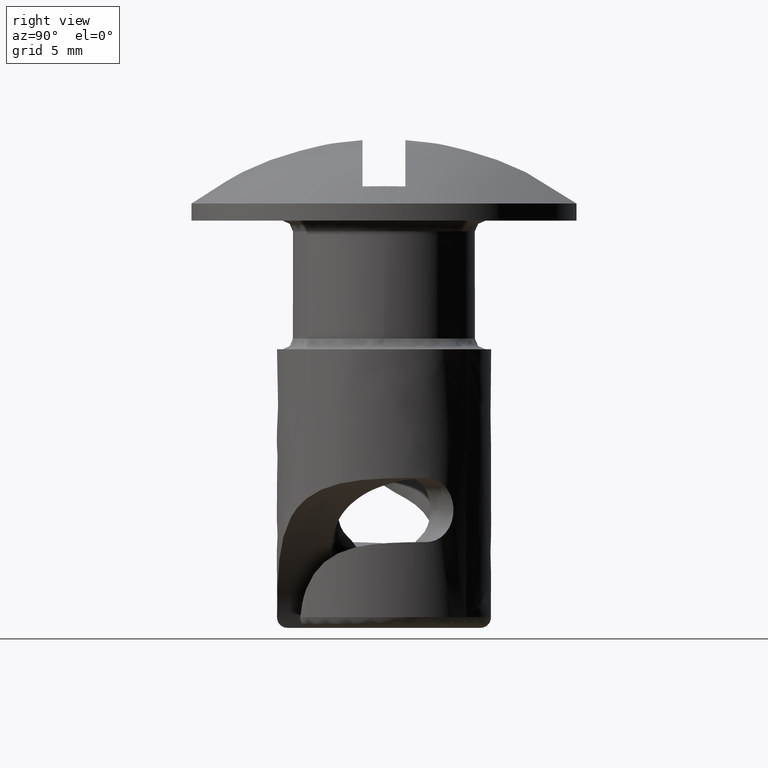
[diagram: clean part render]
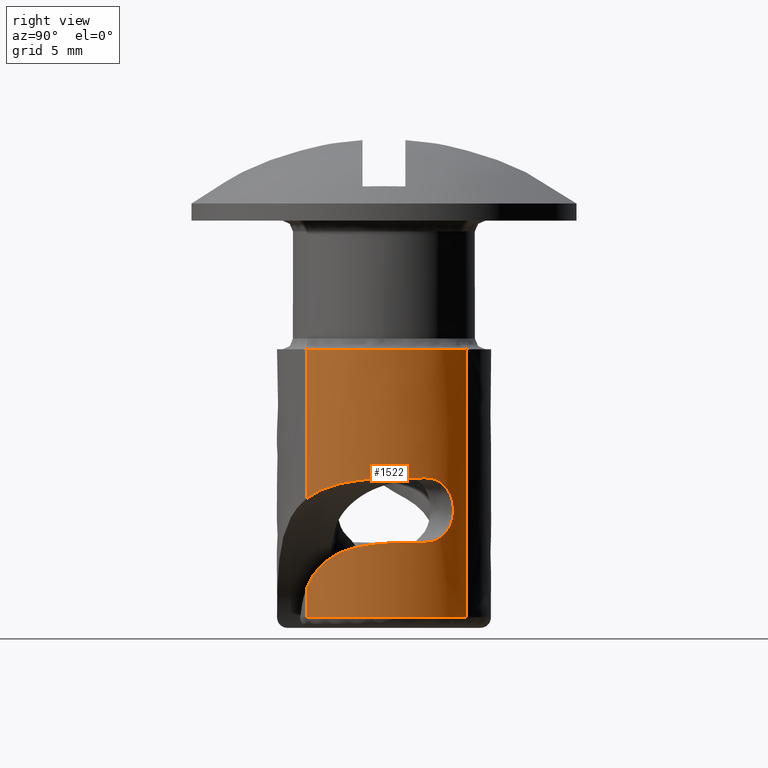
[diagram: same view with one face highlighted and labeled with its STEP entity id]
A machine part, right view. The second image highlights one B-rep face of the part: STEP entity #1522.
In plain terms, the highlighted face is a freeform B-spline surface patch.
Its self-contained STEP definition (entity closure, byte-faithful):
#986=CARTESIAN_POINT('',(3.441774244593505,-3.626873291777644,-17.183041864948351));
#987=VERTEX_POINT('',#986);
#1001=CARTESIAN_POINT('',(3.441768623521589,-3.626875892846059,-18.500000000000000));
#1002=VERTEX_POINT('',#1001);
#1016=CARTESIAN_POINT('',(3.441768623521589,-3.626875892846059,-18.500000000000000));
#1017=CARTESIAN_POINT('',(3.441774244593505,-3.626873291777644,-17.183041864948351));
#1018=QUASI_UNIFORM_CURVE('',1,(#1016,#1017),.UNSPECIFIED.,.F.,.U.);
#1019=EDGE_CURVE('',#1002,#987,#1018,.T.);
#1046=CARTESIAN_POINT('',(3.205213124924041,3.837526393891474,-18.500000000000000));
#1047=VERTEX_POINT('',#1046);
#1245=CARTESIAN_POINT('',(3.441772489773512,-3.626879071670037,-12.971468445251970));
#1246=VERTEX_POINT('',#1245);
#1280=CARTESIAN_POINT('',(3.441772743131209,-3.626871983491977,-6.0));
#1281=VERTEX_POINT('',#1280);
#1282=CARTESIAN_POINT('',(3.441772489773512,-3.626879071670037,-12.971468445251970));
#1283=CARTESIAN_POINT('',(3.441772743131209,-3.626871983491977,-6.0));
#1284=QUASI_UNIFORM_CURVE('',1,(#1282,#1283),.UNSPECIFIED.,.F.,.U.);
#1285=EDGE_CURVE('',#1246,#1281,#1284,.T.);
#1304=CARTESIAN_POINT('',(3.205211463064755,3.837527781923784,-6.0));
#1305=VERTEX_POINT('',#1304);
#1321=CARTESIAN_POINT('',(3.205213124924041,3.837526393891474,-18.500000000000000));
#1322=CARTESIAN_POINT('',(3.205211463064755,3.837527781923784,-6.0));
#1323=QUASI_UNIFORM_CURVE('',1,(#1321,#1322),.UNSPECIFIED.,.F.,.U.);
#1324=EDGE_CURVE('',#1047,#1305,#1323,.T.);
#1329=CARTESIAN_POINT('',(3.414158438163224,-3.653076980441064,-18.812500000000007));
#1330=CARTESIAN_POINT('',(3.427943851614790,-3.639995111538010,-18.812500000000000));
#1331=CARTESIAN_POINT('',(7.068644733530205,-0.185098976592668,-18.812500000000004));
#1332=CARTESIAN_POINT('',(3.626871855061437,3.441772878468769,-18.812500000000000));
#1333=CARTESIAN_POINT('',(3.427504307509547,3.651862437704958,-18.812500000000004));
#1334=CARTESIAN_POINT('',(3.189877271075959,3.850335337835514,-18.812500000000011));
#1335=CARTESIAN_POINT('',(3.174499465934483,3.863179320699914,-18.812500000000004));
#1336=CARTESIAN_POINT('',(3.414158438163224,-3.653076980441064,-5.679687500000002));
#1337=CARTESIAN_POINT('',(3.427943851614790,-3.639995111538010,-5.679687500000000));
#1338=CARTESIAN_POINT('',(7.068644733530205,-0.185098976592668,-5.679687500000000));
#1339=CARTESIAN_POINT('',(3.626871855061437,3.441772878468769,-5.679687500000000));
#1340=CARTESIAN_POINT('',(3.427504307509547,3.651862437704958,-5.679687500000000));
#1341=CARTESIAN_POINT('',(3.189877271075959,3.850335337835514,-5.679687500000001));
#1342=CARTESIAN_POINT('',(3.174499465934483,3.863179320699914,-5.679687500000000));
#1350=(BOUNDED_SURFACE()B_SPLINE_SURFACE(2,1,((#1329,#1336),(#1330,#1337),(#1331,#1338),(#1332,#1339),(#1333,#1340),(#1334,#1341),(#1335,#1342)),.UNSPECIFIED.,.F.,.F.,.U.)B_SPLINE_SURFACE_WITH_KNOTS((3,1,2,1,3),(2,2),(0.0,0.044741977023037,8.329013224484934,8.991754924281885,9.036491358250180),(0.0,13.132812500000011),.UNSPECIFIED.)GEOMETRIC_REPRESENTATION_ITEM()RATIONAL_B_SPLINE_SURFACE(((1.003163735535668,1.003163735535668),(1.001581867767834,1.001581867767834),(0.707106781186548,0.707106781186548),(1.0,1.0),(0.976568542494924,0.976568542494924),(0.955557513886006,0.955557513886006),(0.954228909581353,0.954228909581353)))REPRESENTATION_ITEM('')SURFACE());
#1351=CARTESIAN_POINT('',(3.441768623521589,-3.626875892846058,-18.500000000000000));
#1352=CARTESIAN_POINT('',(5.871267993779972,-1.321372492551336,-18.499999999999996));
#1353=CARTESIAN_POINT('',(4.663729042102849,1.802673409646474,-18.500000000000000));
#1354=CARTESIAN_POINT('',(4.197570591971286,3.008680382660280,-18.499999999999996));
#1355=CARTESIAN_POINT('',(3.205213124924040,3.837526393891474,-18.500000000000004));
#1363=(BOUNDED_CURVE()B_SPLINE_CURVE(2,(#1351,#1352,#1353,#1354,#1355),.UNSPECIFIED.,.F.,.U.)B_SPLINE_CURVE_WITH_KNOTS((3,2,3),(0.035159461811419,0.500000000000000,0.701706621458012),.UNSPECIFIED.)CURVE()GEOMETRIC_REPRESENTATION_ITEM()RATIONAL_B_SPLINE_CURVE((0.974721100635891,0.820255359000559,1.0,0.922004039487468,0.906937285704358))REPRESENTATION_ITEM(''));
#1364=EDGE_CURVE('',#1002,#1047,#1363,.T.);
#1365=ORIENTED_EDGE('',*,*,#1364,.T.);
#1366=ORIENTED_EDGE('',*,*,#1324,.T.);
#1367=CARTESIAN_POINT('',(5.0,0.0,-6.0));
#1368=VERTEX_POINT('',#1367);
#1369=CARTESIAN_POINT('',(5.0,0.0,-6.0));
#1370=CARTESIAN_POINT('',(5.000000000000001,2.338469763514471,-6.000000000000001));
#1371=CARTESIAN_POINT('',(3.205211463064754,3.837527781923785,-6.0));
#1379=(BOUNDED_CURVE()B_SPLINE_CURVE(2,(#1369,#1370,#1371),.UNSPECIFIED.,.F.,.U.)B_SPLINE_CURVE_WITH_KNOTS((3,3),(0.0,0.138519975745648),.UNSPECIFIED.)CURVE()GEOMETRIC_REPRESENTATION_ITEM()RATIONAL_B_SPLINE_CURVE((1.0,0.837713753735584,0.855266602642360))REPRESENTATION_ITEM(''));
#1380=EDGE_CURVE('',#1368,#1305,#1379,.T.);
#1381=ORIENTED_EDGE('',*,*,#1380,.F.);
#1382=CARTESIAN_POINT('',(3.441772743131209,-3.626871983491978,-6.0));
#1383=CARTESIAN_POINT('',(4.999999999999999,-2.148169750849545,-5.999999999999999));
#1384=CARTESIAN_POINT('',(5.0,0.0,-6.0));
#1392=(BOUNDED_CURVE()B_SPLINE_CURVE(2,(#1382,#1383,#1384),.UNSPECIFIED.,.F.,.U.)B_SPLINE_CURVE_WITH_KNOTS((3,3),(0.871049515396279,1.0),.UNSPECIFIED.)CURVE()GEOMETRIC_REPRESENTATION_ITEM()RATIONAL_B_SPLINE_CURVE((0.853699662203474,0.848925109987446,1.0))REPRESENTATION_ITEM(''));
#1393=EDGE_CURVE('',#1281,#1368,#1392,.T.);
#1394=ORIENTED_EDGE('',*,*,#1393,.F.);
#1395=ORIENTED_EDGE('',*,*,#1285,.F.);
#1396=CARTESIAN_POINT('',(4.602524578819660,1.953654908462775,-12.0));
#1397=VERTEX_POINT('',#1396);
#1398=CARTESIAN_POINT('',(3.441772489773512,-3.626879071670037,-12.971468445251970));
#1399=CARTESIAN_POINT('',(3.548379349091136,-3.525719991151250,-12.889846202004090));
#1400=CARTESIAN_POINT('',(3.652592024892833,-3.417887788629056,-12.814368562978400));
#1401=CARTESIAN_POINT('',(3.834675281194063,-3.210957434872466,-12.688848212925940));
#1402=CARTESIAN_POINT('',(3.913651438486520,-3.114392152650138,-12.636739477671769));
#1403=CARTESIAN_POINT('',(4.066784011742895,-2.911593708801584,-12.539596673289280));
#1404=CARTESIAN_POINT('',(4.141246833179123,-2.804805124081124,-12.494399038874411));
#1405=CARTESIAN_POINT('',(4.351417006617413,-2.476428991359699,-12.371493449278059));
#1406=CARTESIAN_POINT('',(4.475381019209861,-2.245292909358116,-12.305440490488859));
#1407=CARTESIAN_POINT('',(4.634749702125016,-1.880605617737184,-12.224529583072950));
#1408=CARTESIAN_POINT('',(4.683432059878688,-1.756036678838290,-12.200601941773270));
#1409=CARTESIAN_POINT('',(4.749367715210424,-1.564623652032939,-12.168669447565360));
#1410=CARTESIAN_POINT('',(4.770196337902296,-1.499932933715150,-12.158670202523879));
#1411=CARTESIAN_POINT('',(4.809062706295844,-1.370215039710904,-12.140059656320920));
#1412=CARTESIAN_POINT('',(4.827145091846117,-1.305074442143849,-12.131426466761910));
#1413=CARTESIAN_POINT('',(4.910850485149055,-0.978002761053586,-12.091266576247291));
#1414=CARTESIAN_POINT('',(4.956468664724564,-0.711993510775502,-12.068656547192591));
#1415=CARTESIAN_POINT('',(4.986424392759743,-0.374385311043207,-12.047762002960440));
#1416=CARTESIAN_POINT('',(4.991054916842461,-0.306607113640023,-12.043957446633380));
#1417=CARTESIAN_POINT('',(4.997554824166206,-0.170539259013606,-12.037005681711801));
#1418=CARTESIAN_POINT('',(4.999424483786168,-0.102133226609051,-12.033853748255710));
#1419=CARTESIAN_POINT('',(5.000809240137235,0.103035250024759,-12.025291488316711));
#1420=CARTESIAN_POINT('',(4.996123769010771,0.239010525101476,-12.020793431828411));
#1421=CARTESIAN_POINT('',(4.965686756528940,0.644569411181542,-12.009847384832209));
#1422=CARTESIAN_POINT('',(4.923659031185395,0.911799966097792,-12.005870748399410));
#1423=CARTESIAN_POINT('',(4.827833164739483,1.307852230178568,-12.002173933067059));
#1424=CARTESIAN_POINT('',(4.790312112753091,1.439329982490290,-12.001338791504709));
#1425=CARTESIAN_POINT('',(4.704332168261486,1.699417313559335,-12.000251808241361));
#1426=CARTESIAN_POINT('',(4.656069047816061,1.827512109854006,-12.000000155278730));
#1427=CARTESIAN_POINT('',(4.602524578819660,1.953654908462775,-12.0));
#1428=B_SPLINE_CURVE_WITH_KNOTS('',3,(#1398,#1399,#1400,#1401,#1402,#1403,#1404,#1405,#1406,#1407,#1408,#1409,#1410,#1411,#1412,#1413,#1414,#1415,#1416,#1417,#1418,#1419,#1420,#1421,#1422,#1423,#1424,#1425,#1426,#1427),.UNSPECIFIED.,.F.,.U.,(4,2,2,2,2,2,2,2,2,2,2,2,2,2,4),(0.523472666349916,0.562500000000001,0.593750000000001,0.625000000000001,0.687500000000001,0.718750000000001,0.734375000000001,0.750000000000000,0.812500000000000,0.828125000000000,0.843750000000000,0.875000000000000,0.937500000000000,0.968750000000000,1.0),.UNSPECIFIED.);
#1429=EDGE_CURVE('',#1246,#1397,#1428,.T.);
#1430=ORIENTED_EDGE('',*,*,#1429,.T.);
#1431=CARTESIAN_POINT('',(4.602524578820230,1.953654908464365,-15.000000000003750));
#1432=VERTEX_POINT('',#1431);
#1433=CARTESIAN_POINT('',(4.602524578819660,1.953654908462775,-12.0));
#1434=CARTESIAN_POINT('',(4.563888335937327,2.044676233022971,-11.999999999998710));
#1435=CARTESIAN_POINT('',(4.522988108416791,2.133531719943489,-12.009682829590790));
#1436=CARTESIAN_POINT('',(4.458480223899392,2.263691421178954,-12.038600209390721));
#1437=CARTESIAN_POINT('',(4.436325682373275,2.306788186096278,-12.050742209554340));
#1438=CARTESIAN_POINT('',(4.391689454748659,2.390673760396322,-12.079593394369100));
#1439=CARTESIAN_POINT('',(4.369260238922512,2.431385331617876,-12.096239295939929));
#1440=CARTESIAN_POINT('',(4.301813212885345,2.550035636297682,-12.152631568160199));
#1441=CARTESIAN_POINT('',(4.256622245118563,2.624516412491075,-12.198766978454310));
#1442=CARTESIAN_POINT('',(4.166965229559699,2.764655514293550,-12.308624989452870));
#1443=CARTESIAN_POINT('',(4.123928188989802,2.828103263411386,-12.370610466680210));
#1444=CARTESIAN_POINT('',(4.063011887700120,2.914304778934973,-12.473769728811170));
#1445=CARTESIAN_POINT('',(4.043314921861691,2.941534866259906,-12.509869394523530));
#1446=CARTESIAN_POINT('',(4.005353683660793,2.993019344333917,-12.585599964781450));
#1447=CARTESIAN_POINT('',(3.987068279313907,3.017296079900917,-12.625325430129980));
#1448=CARTESIAN_POINT('',(3.935837247661398,3.084208415575647,-12.747326254159301));
#1449=CARTESIAN_POINT('',(3.906065506707493,3.121568112939356,-12.833173105041331));
#1450=CARTESIAN_POINT('',(3.869015228129437,3.167191969411545,-12.968863480211470));
#1451=CARTESIAN_POINT('',(3.857908938142202,3.180686438203842,-13.015408293585200));
#1452=CARTESIAN_POINT('',(3.838645093046537,3.203908775667787,-13.110277731646409));
#1453=CARTESIAN_POINT('',(3.830575341310175,3.213532960955394,-13.158121174139779));
#1454=CARTESIAN_POINT('',(3.811099976680845,3.236653072873952,-13.302856774833430));
#1455=CARTESIAN_POINT('',(3.804400519366003,3.244462465592798,-13.400979740911920));
#1456=CARTESIAN_POINT('',(3.804464001416535,3.244388026164331,-13.600424053246620));
#1457=CARTESIAN_POINT('',(3.811220267633781,3.236511522801230,-13.698357456029550));
#1458=CARTESIAN_POINT('',(3.830709542850855,3.213373008183660,-13.842713633293240));
#1459=CARTESIAN_POINT('',(3.838772165615325,3.203756348083363,-13.890405392791290));
#1460=CARTESIAN_POINT('',(3.857987983951831,3.180590384358019,-13.984923042933181));
#1461=CARTESIAN_POINT('',(3.869159482681558,3.167016169637896,-14.031723439997840));
#1462=CARTESIAN_POINT('',(3.906337838463249,3.121229049025451,-14.167705702132780));
#1463=CARTESIAN_POINT('',(3.936183187646427,3.083767803543986,-14.253605951446470));
#1464=CARTESIAN_POINT('',(3.987451172444843,3.016790286975459,-14.375531304672730));
#1465=CARTESIAN_POINT('',(4.005736760199250,2.992507007240879,-14.415208834497470));
#1466=CARTESIAN_POINT('',(4.043732834366358,2.940960717973765,-14.490918784804149));
#1467=CARTESIAN_POINT('',(4.063440839945876,2.913706825363493,-14.526995332467591));
#1468=CARTESIAN_POINT('',(4.124368310533360,2.827462066006832,-14.630056315970871));
#1469=CARTESIAN_POINT('',(4.167374391739298,2.764036537589164,-14.691926270961050));
#1470=CARTESIAN_POINT('',(4.256934651737494,2.624007369061483,-14.801565505830970));
#1471=CARTESIAN_POINT('',(4.302196790825363,2.549380996104969,-14.847723002082891));
#1472=CARTESIAN_POINT('',(4.369475931489904,2.430995733583820,-14.903923958845439));
#1473=CARTESIAN_POINT('',(4.391828437819329,2.390414362847927,-14.920499122912011));
#1474=CARTESIAN_POINT('',(4.436270531590658,2.306890032898963,-14.949219454146551));
#1475=CARTESIAN_POINT('',(4.458477163732524,2.263700551619400,-14.961402498947940));
#1476=CARTESIAN_POINT('',(4.523174490997310,2.133149725569398,-14.990392544015171));
#1477=CARTESIAN_POINT('',(4.564039231841211,2.044320744390517,-14.999999999997730));
#1478=CARTESIAN_POINT('',(4.602524578820230,1.953654908464365,-15.000000000003750));
#1479=B_SPLINE_CURVE_WITH_KNOTS('',3,(#1433,#1434,#1435,#1436,#1437,#1438,#1439,#1440,#1441,#1442,#1443,#1444,#1445,#1446,#1447,#1448,#1449,#1450,#1451,#1452,#1453,#1454,#1455,#1456,#1457,#1458,#1459,#1460,#1461,#1462,#1463,#1464,#1465,#1466,#1467,#1468,#1469,#1470,#1471,#1472,#1473,#1474,#1475,#1476,#1477,#1478),.UNSPECIFIED.,.F.,.U.,(4,2,2,2,2,2,2,2,2,2,2,2,2,2,2,2,2,2,2,2,2,2,4),(0.0,0.062500000000000,0.093750000000000,0.125000000000000,0.187500000000001,0.250000000000001,0.281250000000001,0.312500000000001,0.375000000000001,0.406250000000002,0.437500000000003,0.500000000000004,0.562500000000004,0.593750000000004,0.625000000000004,0.687500000000003,0.718750000000002,0.750000000000001,0.812500000000001,0.875000000000001,0.906250000000000,0.937500000000000,1.0),.UNSPECIFIED.);
#1480=EDGE_CURVE('',#1397,#1432,#1479,.T.);
#1481=ORIENTED_EDGE('',*,*,#1480,.T.);
#1482=CARTESIAN_POINT('',(3.441774244593505,-3.626873291777644,-17.183041864948351));
#1483=CARTESIAN_POINT('',(3.458372179122760,-3.611120261870152,-17.140629940243500));
#1484=CARTESIAN_POINT('',(3.475461759574415,-3.594683318613869,-17.098672466718110));
#1485=CARTESIAN_POINT('',(3.554881794931193,-3.517139647496761,-16.910947930408440));
#1486=CARTESIAN_POINT('',(3.622575736787427,-3.447973824769841,-16.770367035911040));
#1487=CARTESIAN_POINT('',(3.840221069012320,-3.209216952007409,-16.366287706210080));
#1488=CARTESIAN_POINT('',(3.997127772337515,-3.016727181242666,-16.134268637945880));
#1489=CARTESIAN_POINT('',(4.191210006902377,-2.727379603672325,-15.886889857943149));
#1490=CARTESIAN_POINT('',(4.230052178381135,-2.666838923448196,-15.839406458597150));
#1491=CARTESIAN_POINT('',(4.306498426744911,-2.541543466810940,-15.749345803216650));
#1492=CARTESIAN_POINT('',(4.343894011441074,-2.477149102162831,-15.706997531249019));
#1493=CARTESIAN_POINT('',(4.453076813754691,-2.278789126747600,-15.587371238225870));
#1494=CARTESIAN_POINT('',(4.521858114264363,-2.139652780219571,-15.517497605776720));
#1495=CARTESIAN_POINT('',(4.617044136867513,-1.920735318938257,-15.425338648030500));
#1496=CARTESIAN_POINT('',(4.647442764267566,-1.846059103699362,-15.396731613457050));
#1497=CARTESIAN_POINT('',(4.705250909670188,-1.693302393963200,-15.343419573385489));
#1498=CARTESIAN_POINT('',(4.732640215961113,-1.615221558097201,-15.318735952337590));
#1499=CARTESIAN_POINT('',(4.808853279324187,-1.379223129496061,-15.250916525748179));
#1500=CARTESIAN_POINT('',(4.852153286497338,-1.218482261653491,-15.213586881599690));
#1501=CARTESIAN_POINT('',(4.922866712762181,-0.890772195975160,-15.150936447353059));
#1502=CARTESIAN_POINT('',(4.950291635996318,-0.723747569530670,-15.125619184299991));
#1503=CARTESIAN_POINT('',(4.988155069351786,-0.384067675907922,-15.084036443662070));
#1504=CARTESIAN_POINT('',(4.998301611328462,-0.214134342934807,-15.068081766136631));
#1505=CARTESIAN_POINT('',(5.001306701052140,0.125717147595895,-15.042704495638381));
#1506=CARTESIAN_POINT('',(4.994165799175923,0.295635944463387,-15.033291282428410));
#1507=CARTESIAN_POINT('',(4.970346675086279,0.550386638172074,-15.022383195637151));
#1508=CARTESIAN_POINT('',(4.960218623512695,0.635282582401444,-15.019288359505129));
#1509=CARTESIAN_POINT('',(4.935514371722967,0.805016162585675,-15.013962864914060));
#1510=CARTESIAN_POINT('',(4.920916639910804,0.889902257620594,-15.011732977914480));
#1511=CARTESIAN_POINT('',(4.870821764792439,1.142141477106048,-15.006113054355870));
#1512=CARTESIAN_POINT('',(4.828944683874203,1.307853607903106,-15.003741518577311));
#1513=CARTESIAN_POINT('',(4.728408997838148,1.634422422654809,-15.000684385360170));
#1514=CARTESIAN_POINT('',(4.669750991912538,1.795279295389859,-14.999999999981910));
#1515=CARTESIAN_POINT('',(4.602524578820230,1.953654908464365,-15.000000000003750));
#1516=B_SPLINE_CURVE_WITH_KNOTS('',3,(#1482,#1483,#1484,#1485,#1486,#1487,#1488,#1489,#1490,#1491,#1492,#1493,#1494,#1495,#1496,#1497,#1498,#1499,#1500,#1501,#1502,#1503,#1504,#1505,#1506,#1507,#1508,#1509,#1510,#1511,#1512,#1513,#1514,#1515),.UNSPECIFIED.,.F.,.U.,(4,2,2,2,2,2,2,2,2,2,2,2,2,2,2,2,4),(0.169760136378045,0.187499999999998,0.249999999999997,0.374999999999996,0.406249999999996,0.437499999999997,0.499999999999997,0.531249999999997,0.562499999999998,0.624999999999998,0.687499999999998,0.749999999999998,0.812499999999999,0.843749999999999,0.874999999999999,0.937500000000000,1.0),.UNSPECIFIED.);
#1517=EDGE_CURVE('',#987,#1432,#1516,.T.);
#1518=ORIENTED_EDGE('',*,*,#1517,.F.);
#1519=ORIENTED_EDGE('',*,*,#1019,.F.);
#1520=EDGE_LOOP('',(#1365,#1366,#1381,#1394,#1395,#1430,#1481,#1518,#1519));
#1521=FACE_OUTER_BOUND('',#1520,.T.);
#1522=ADVANCED_FACE('',(#1521),#1350,.T.);